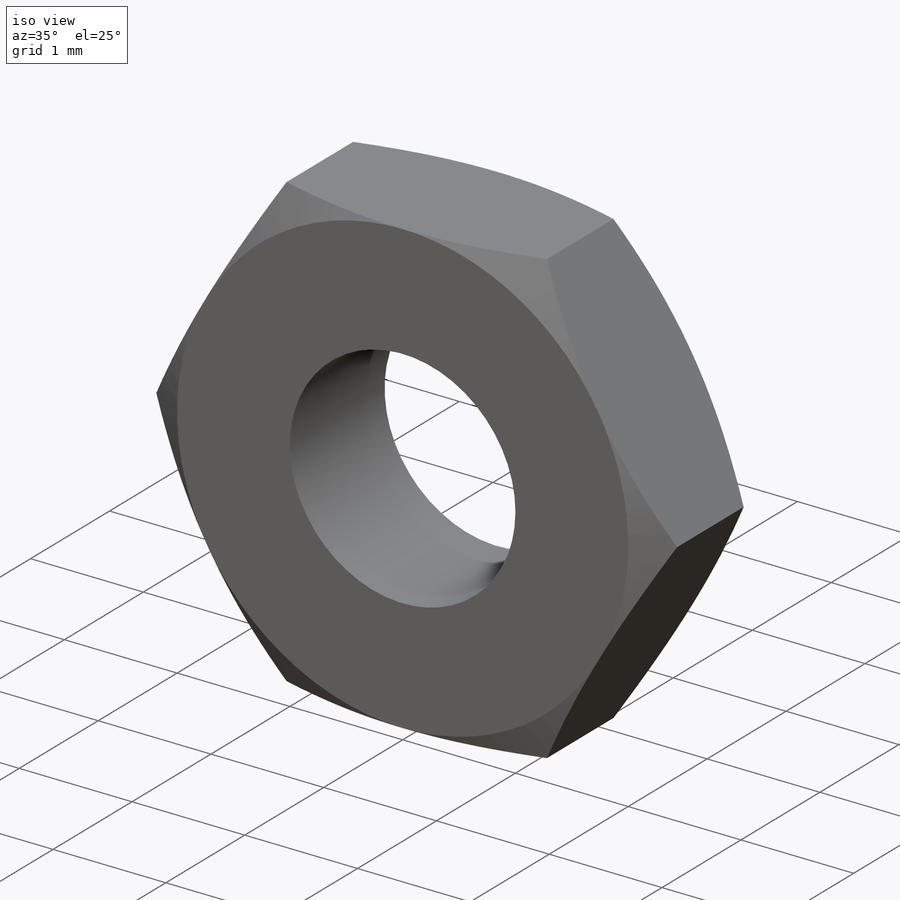
[diagram: iso view]
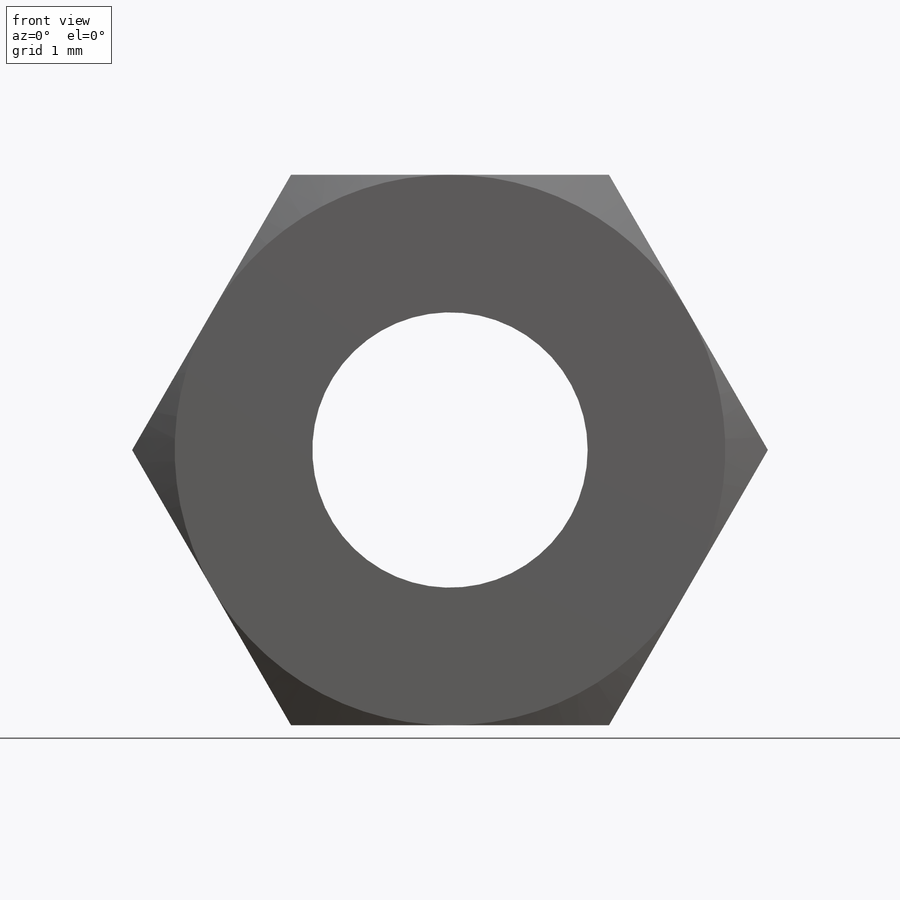
[diagram: front view]
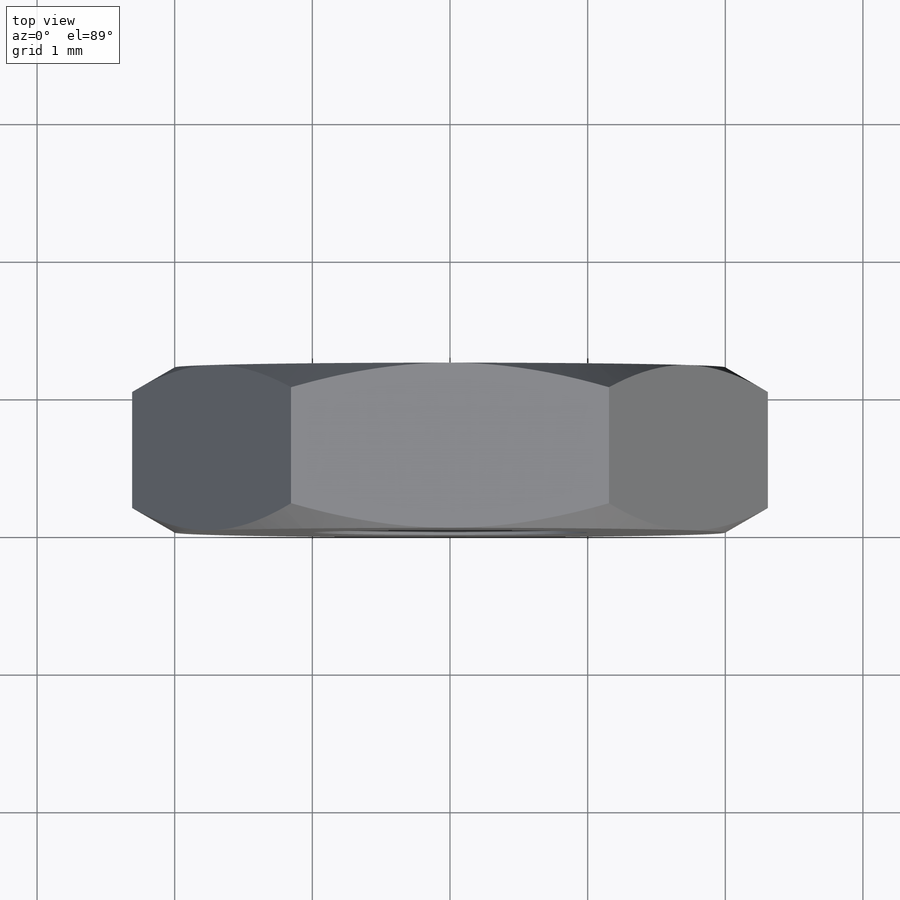
[diagram: top view]
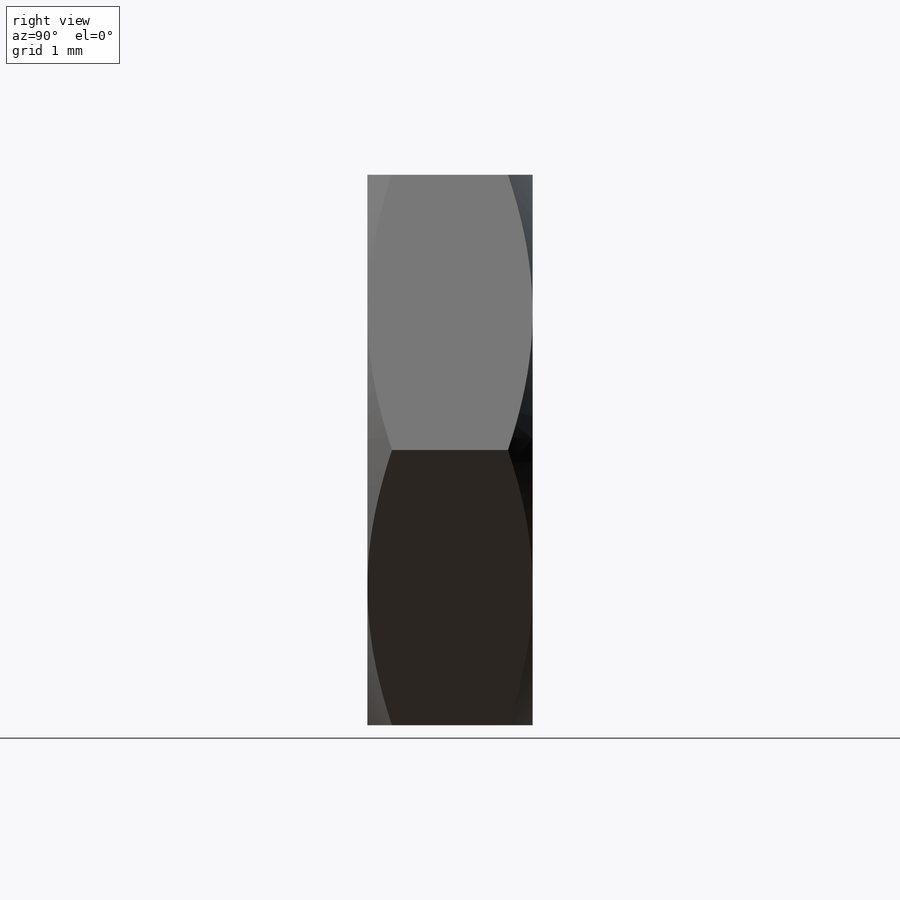
[diagram: right view]
SOLIDWORKS PART (.sldprt)
format: sldprt  version: not decoded by parser v0  size: 275,456 bytes
history: native  units: mm
features: extrude x5, plane x3, material x1, sketch x1, cut_extrude x1, cut_revolve x1 (+13 scaffold rows collapsed)
feature tree (25):
  scaffold x13  (default folders/planes/origin — collapsed)
  material  "AISI 316 (A4) Annealed Stainless Bar"
  sketch  "HexSketch1"  dims[D1=~47.295833mm]
  extrude  "Hex"  Depth=1.2mm hexT_MAX=1.2mm
  plane  "Nut_Top_Plane"
  plane  "Collar_Top_Plane"  Offset=6mm Locknut_T=6mm
  extrude  "Lock Collar BossSketch2"  Depth=8.429373mm
  extrude  "Plastic_SleeveSketch5"  Depth=8mm INSERT_OD=8mm
  extrude  "Thread_BoreSketch4"  Depth=4.645187mm
  cut_extrude  "Thread_Bore"  [1 undecoded]
  plane  "CORNERSPlane3"
  extrude  "NUT_CHAMFERSketch10"  Depth=0.773503mm
  cut_revolve  "NUT_CHAMFER"  Angle=360deg
decode coverage: 7 of 8 modeling features carry decoded parameters
note: ~ marks probable driven/reference dimensions
note: 1 parameter value undecoded
note: suppression state not decoded; provenance and decode notes live in map.json
